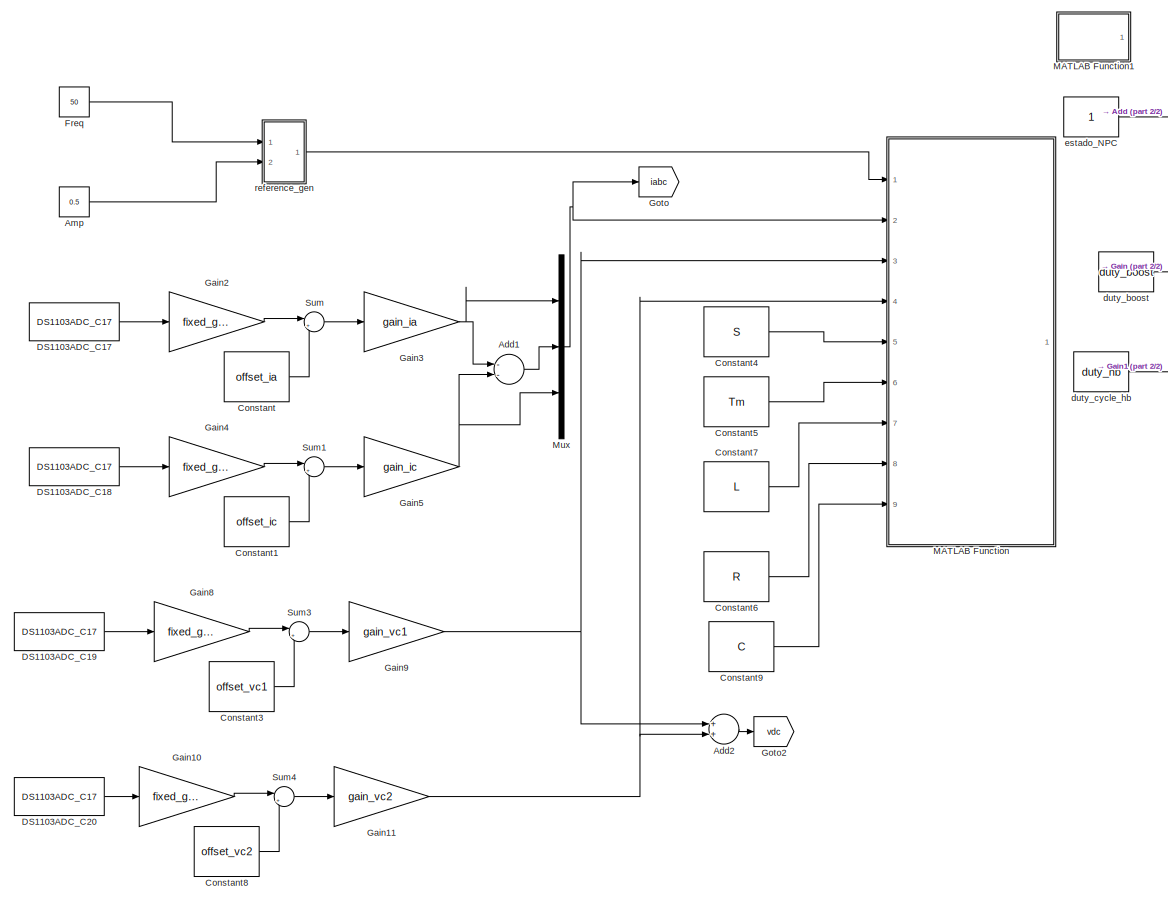
[diagram: root canvas - part 1/2, left side, full height]
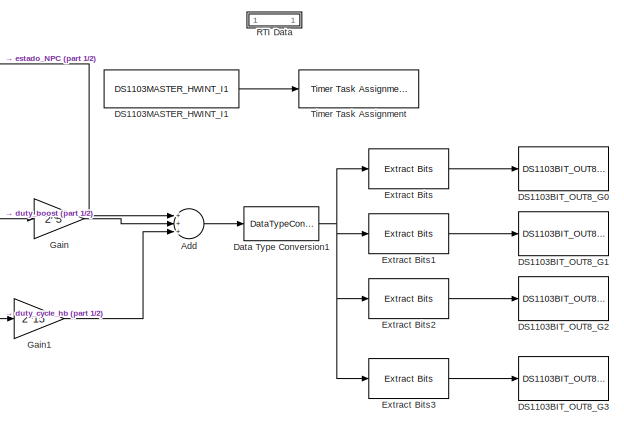
[diagram: root canvas - part 2/2, top right region]
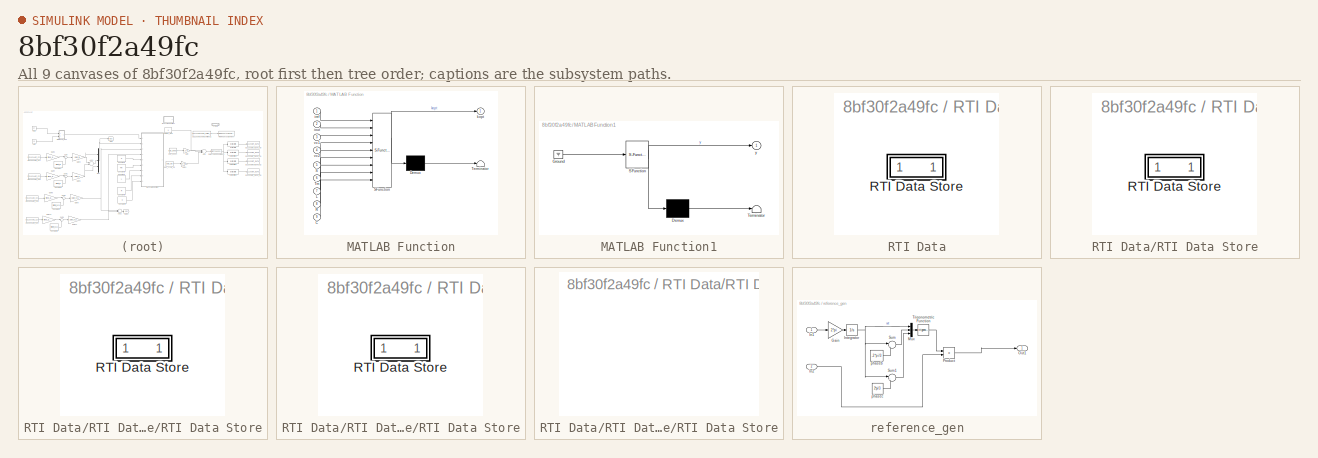
[diagram: thumbnail index - all 9 canvases of the model, root first then tree order]
MODEL slx_8bf30f2a49fc
KIND model
CONFIG PostLoadFcn = , if any(exist('dsrtsu_mdlpostloadfcn', 'file') == [2, 3, 6]), try dsrtsu_mdlpostloadfcn('Execute', bdroot); catch fprintf('Error in PostLoadFcn (dsrtsu_mdlpostloadfcn) for model "%s":\n %s\n', bdroot, lasterr); end, end, \n
BLOCK [Sum] Add
  InputSameDT = off
  Inputs = +++
  OutDataTypeStr = Inherit: Inherit via internal rule
  Ports = [3, 1]
  SaturateOnIntegerOverflow = off
BLOCK [Sum] Add1 
  InputSameDT = off
  Inputs = --
  OutDataTypeStr = Inherit: Inherit via internal rule
  Ports = [2, 1]
  SaturateOnIntegerOverflow = off
BLOCK [Sum] Add2
  InputSameDT = off
  OutDataTypeStr = Inherit: Inherit via internal rule
  Ports = [2, 1]
  SaturateOnIntegerOverflow = off
BLOCK [Constant] Amp
  Value = 0.5
BLOCK [Constant] Constant
  Value = offset_ia
BLOCK [Constant] Constant1
  Value = offset_ic
BLOCK [Constant] Constant3
  Value = offset_vc1
BLOCK [Constant] Constant4
  Value = S
BLOCK [Constant] Constant5
  Value = Tm
BLOCK [Constant] Constant6
  Value = R
BLOCK [Constant] Constant7
  Value = L
BLOCK [Constant] Constant8
  Value = offset_vc2
BLOCK [Constant] Constant9
  Value = C
BLOCK [Reference] DS1103ADC_C17  REF=rtilib1103/DS1103 MASTER PPC/DS1103ADC_C17
  ChannelNo = 17
  DSProperties = struct('RTI',struct('Version',uint32(1),'BlockType',struct('isSLSource',uint8(1),'isSLSink',uint8(0),'isHWSource',uint8(1),'isHWSink',uint8(0),'isSetup',uint8(0),'isInline',uint8(1),'isNonInline',uint8(0),'isInterrupt',uint8(0),'isChannelwise',uint8(1)),'IOBoardType','DS1103MASTER','UnitType','ADC','Identifier','ADC','DialogType','ML','BlockSet','NONE','SlaveProcessor','NONE'))  <repeated x4 — deduplicated; at blocks: DS1103ADC_C17, DS1103ADC_C18, DS1103ADC_C19, DS1103ADC_C20>
  DialogFcn = gui1103adc
  Ports = [0, 1]
  Reserved2 = []
  Reserved3 = []
  Reserved4 = []
  SourceBlock = rtilib1103/DS1103 MASTER PPC/DS1103ADC_C17
  SourceType = DS1103ADC_C
  TimerAPreTrigger = 0
  UnitName = { 'DS1103ADC_C' }
  UnitValues = { 17 }
BLOCK [Reference] DS1103ADC_C18  REF=rtilib1103/DS1103 MASTER PPC/DS1103ADC_C17
  ChannelNo = 18
  DialogFcn = gui1103adc
  Ports = [0, 1]
  Reserved2 = []
  Reserved3 = []
  Reserved4 = []
  SourceBlock = rtilib1103/DS1103 MASTER PPC/DS1103ADC_C17
  SourceType = DS1103ADC_C
  TimerAPreTrigger = 0
  UnitName = { 'DS1103ADC_C' }
  UnitValues = { 18 }
BLOCK [Reference] DS1103ADC_C19  REF=rtilib1103/DS1103 MASTER PPC/DS1103ADC_C17
  ChannelNo = 19
  DialogFcn = gui1103adc
  Ports = [0, 1]
  Reserved2 = []
  Reserved3 = []
  Reserved4 = []
  SourceBlock = rtilib1103/DS1103 MASTER PPC/DS1103ADC_C17
  SourceType = DS1103ADC_C
  TimerAPreTrigger = 0
  UnitName = { 'DS1103ADC_C' }
  UnitValues = { 19 }
BLOCK [Reference] DS1103ADC_C20  REF=rtilib1103/DS1103 MASTER PPC/DS1103ADC_C17
  ChannelNo = 20
  DialogFcn = gui1103adc
  Ports = [0, 1]
  Reserved2 = []
  Reserved3 = []
  Reserved4 = []
  SourceBlock = rtilib1103/DS1103 MASTER PPC/DS1103ADC_C17
  SourceType = DS1103ADC_C
  TimerAPreTrigger = 0
  UnitName = { 'DS1103ADC_C' }
  UnitValues = { 20 }
BLOCK [Reference] DS1103BIT_OUT8_G0  REF=rtilib1103/DS1103 MASTER PPC/DS1103BIT_OUT8_G0
  DSProperties = struct('RTI',struct('Version',uint32(1),'BlockType',struct('isSLSource',uint8(0),'isSLSink',uint8(1),'isHWSource',uint8(0),'isHWSink',uint8(1),'isSetup',uint8(0),'isInline',uint8(1),'isNonInline',uint8(0),'isInterrupt',uint8(0),'isChannelwise',uint8(0)),'IOBoardType','DS1103MASTER','UnitType','BIT','Identifier','BITOUT8','DialogType','ML','BlockSet','NONE','SlaveProcessor','NONE'))  <repeated x4 — deduplicated; at blocks: DS1103BIT_OUT8_G0, DS1103BIT_OUT8_G1, DS1103BIT_OUT8_G2, DS1103BIT_OUT8_G3>
  DialogFcn = gui1103bit_out8
  GroupNo = 0
  InitValue = 0
  Ports = [1]
  Reserved1 = []
  Reserved2 = []
  Reserved3 = []
  Reserved4 = []
  SourceBlock = rtilib1103/DS1103 MASTER PPC/DS1103BIT_OUT8_G0
  SourceType = DS1103_BIT_OUT8_G
  TermMode = 1
  TermValue = 0
  UnitName = { 'DS1103BIT_OUT8_G' }
  UnitValues = { 0 }
BLOCK [Reference] DS1103BIT_OUT8_G1  REF=rtilib1103/DS1103 MASTER PPC/DS1103BIT_OUT8_G0
  DialogFcn = gui1103bit_out8
  GroupNo = 1
  InitValue = 0
  Ports = [1]
  Reserved1 = []
  Reserved2 = []
  Reserved3 = []
  Reserved4 = []
  SourceBlock = rtilib1103/DS1103 MASTER PPC/DS1103BIT_OUT8_G0
  SourceType = DS1103_BIT_OUT8_G
  TermMode = 1
  TermValue = 0
  UnitName = { 'DS1103BIT_OUT8_G' }
  UnitValues = {1}
BLOCK [Reference] DS1103BIT_OUT8_G2  REF=rtilib1103/DS1103 MASTER PPC/DS1103BIT_OUT8_G0
  DialogFcn = gui1103bit_out8
  GroupNo = 2
  InitValue = 0
  Ports = [1]
  Reserved1 = []
  Reserved2 = []
  Reserved3 = []
  Reserved4 = []
  SourceBlock = rtilib1103/DS1103 MASTER PPC/DS1103BIT_OUT8_G0
  SourceType = DS1103_BIT_OUT8_G
  TermMode = 1
  TermValue = 0
  UnitName = { 'DS1103BIT_OUT8_G' }
  UnitValues = {2}
BLOCK [Reference] DS1103BIT_OUT8_G3  REF=rtilib1103/DS1103 MASTER PPC/DS1103BIT_OUT8_G0
  DialogFcn = gui1103bit_out8
  GroupNo = 3
  InitValue = 0
  Ports = [1]
  Reserved1 = []
  Reserved2 = []
  Reserved3 = []
  Reserved4 = []
  SourceBlock = rtilib1103/DS1103 MASTER PPC/DS1103BIT_OUT8_G0
  SourceType = DS1103_BIT_OUT8_G
  TermMode = 1
  TermValue = 0
  UnitName = { 'DS1103BIT_OUT8_G' }
  UnitValues = {3}
BLOCK [Reference] DS1103MASTER_HWINT_I1  REF=rtilib1103/DS1103 MASTER PPC/DS1103MASTER_HWINT_I1
  BoardIntNo = []
  BoardType = []
  DSProperties = struct('RTI',struct('IOBoardType',{{'DS1103MASTER'}},'SlaveProcessor','NONE','UnitType','HWINT','Identifier','HWINT','Version',uint32(2),'BlockType',struct('isSLSource',uint8(1),'isSLSink',uint8(0),'isHWSource',uint8(1),'isHWSink',uint8(0),'isSetup',uint8(0),'isInline',uint8(1),'isNonInline',uint8(0),'isInterrupt',uint8(1),'isChannelwise',uint8(0)),'DialogType','ML','BlockSet','NONE','RelationId',...<+40ch>
  DialogFcn = []
  DisplayIntNo = []
  InterruptName = []
  Parameters = []
  Ports = [0, 1]
  RTIBlockInterface = struct('BlockName',struct('Token',{{'DS1103MASTER_HWINT_I'}},'BlockParam',{{'ThIntNo'}}),'BlockDisplay',{{['DS1103MASTER Board \nUser-Interrupt 1'],'center'}},'DialogFcn','rti110xhwintgui','OutputPortsActive',1,'OutputPortsWidth',int32(1),'FunctionCall',uint32(0),'OutputPortsName',{{[' ']}},'IconTransparency','on','InitLevel',3,'Options',{{'SS_OPTION_FORCE_NONINLINED_FCNCALL','SS_OPTION_ASYNCHRONO...<+16ch>
  RTIBlockParaDefault = struct('BoardNo',0,'ThIntNo',1,'ThSrcSgnName',['User-Interrupt 1'],'ThBlk',['struct(''srcSgnId'', '''')'],'TLCFileName','rti_hwinterrupt','PHSBoardBaseId','DSXXXX')
  RTIBlockParameters = struct('BoardNo',{{0,'OFF',[]}},'ThIntNo',{{1,'ON',[1 13]}},'ThSrcSgnName',{{['User-Interrupt 1'],'OFF',[]}},'ThBlk',{{['struct(''blkh'',''DCMG2/DS1103MASTER_HWINT_I1'',''srcId'',''EXT0'',''srcSgnId'',''EXT0'',''intervalTmrBlockId'',[],''srcSgnName'',[''User-Interrupt 1''],''srcCpuId'','''',''isSrcCpu'',1,''isTargetCpu'',1,''srcOnMasterCpu'',1,''boardType'','''',''boardTypeNo'','''',''boardNo'',1,...<+707ch>
  RTISFcnParameters = struct('ThBlk','struct','ThIntNo','int32','TLCFileName','char','PHSBoardBaseId','char')
  Reserved1 = []
  Reserved2 = []
  Reserved3 = []
  Reserved4 = []
  Revision = []
  SourceBlock = rtilib1103/DS1103 MASTER PPC/DS1103MASTER_HWINT_I1
  SourceType = RTI
  TDef = []
  UnitName = []
  UnitValues = []
BLOCK [DataTypeConversion] Data Type Conversion1
  OutDataTypeStr = uint32
  RndMeth = Floor
  SaturateOnIntegerOverflow = off
BLOCK [Reference] Extract Bits  REF=simulink/Logic and Bit
Operations/Extract Bits
  Ports = [1, 1]
  SourceBlock = simulink/Logic and Bit\nOperations/Extract Bits
  SourceType = Extract Bits
  bitIdxRange = [0 7]
  bitsToExtract = Range of bits
  numBits = 8
  outScalingMode = Treat bit field as an integer
BLOCK [Reference] Extract Bits1  REF=simulink/Logic and Bit
Operations/Extract Bits
  Ports = [1, 1]
  SourceBlock = simulink/Logic and Bit\nOperations/Extract Bits
  SourceType = Extract Bits
  bitIdxRange = [8 15]
  bitsToExtract = Range of bits
  numBits = 8
  outScalingMode = Treat bit field as an integer
BLOCK [Reference] Extract Bits2  REF=simulink/Logic and Bit
Operations/Extract Bits
  Ports = [1, 1]
  SourceBlock = simulink/Logic and Bit\nOperations/Extract Bits
  SourceType = Extract Bits
  bitIdxRange = [16 23]
  bitsToExtract = Range of bits
  numBits = 8
  outScalingMode = Treat bit field as an integer
BLOCK [Reference] Extract Bits3  REF=simulink/Logic and Bit
Operations/Extract Bits
  Ports = [1, 1]
  SourceBlock = simulink/Logic and Bit\nOperations/Extract Bits
  SourceType = Extract Bits
  bitIdxRange = [24 31]
  bitsToExtract = Range of bits
  numBits = 8
  outScalingMode = Treat bit field as an integer
BLOCK [Constant] Freq
  Value = 50
BLOCK [Gain] Gain
  Gain = 2^5
  OutDataTypeStr = Inherit: Inherit via internal rule
  ParamDataTypeStr = Inherit: Inherit via internal rule
  SaturateOnIntegerOverflow = off
BLOCK [Gain] Gain1
  Gain = 2^15
  OutDataTypeStr = Inherit: Inherit via internal rule
  ParamDataTypeStr = Inherit: Inherit via internal rule
  SaturateOnIntegerOverflow = off
BLOCK [Gain] Gain10
  Gain = fixed_gain_vc2
  OutDataTypeStr = Inherit: Inherit via internal rule
  ParamDataTypeStr = Inherit: Inherit via internal rule
  SaturateOnIntegerOverflow = off
BLOCK [Gain] Gain11
  Gain = gain_vc2
  OutDataTypeStr = Inherit: Inherit via internal rule
  ParamDataTypeStr = Inherit: Inherit via internal rule
  SaturateOnIntegerOverflow = off
BLOCK [Gain] Gain2
  Gain = fixed_gain_ia
  OutDataTypeStr = Inherit: Inherit via internal rule
  ParamDataTypeStr = Inherit: Inherit via internal rule
  SaturateOnIntegerOverflow = off
BLOCK [Gain] Gain3
  Gain = gain_ia
  OutDataTypeStr = Inherit: Inherit via internal rule
  ParamDataTypeStr = Inherit: Inherit via internal rule
  SaturateOnIntegerOverflow = off
BLOCK [Gain] Gain4
  Gain = fixed_gain_ic
  OutDataTypeStr = Inherit: Inherit via internal rule
  ParamDataTypeStr = Inherit: Inherit via internal rule
  SaturateOnIntegerOverflow = off
BLOCK [Gain] Gain5
  Gain = gain_ic
  OutDataTypeStr = Inherit: Inherit via internal rule
  ParamDataTypeStr = Inherit: Inherit via internal rule
  SaturateOnIntegerOverflow = off
BLOCK [Gain] Gain8
  Gain = fixed_gain_vc1
  OutDataTypeStr = Inherit: Inherit via internal rule
  ParamDataTypeStr = Inherit: Inherit via internal rule
  SaturateOnIntegerOverflow = off
BLOCK [Gain] Gain9
  Gain = gain_vc1
  OutDataTypeStr = Inherit: Inherit via internal rule
  ParamDataTypeStr = Inherit: Inherit via internal rule
  SaturateOnIntegerOverflow = off
BLOCK [Goto] Goto
  GotoTag = iabc
BLOCK [Goto] Goto2
  GotoTag = vdc
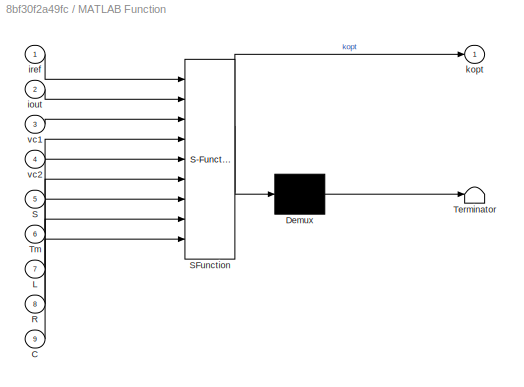
BLOCK [SubSystem] MATLAB Function
  ErrorFcn = Stateflow.Translate.translate
  PermitHierarchicalResolution = ExplicitOnly
  Ports = [9, 1]
  RequestExecContextInheritance = off
  SFBlockType = MATLAB Function
  TreatAsAtomicUnit = on
BLOCK [Demux] MATLAB Function/ Demux 
  Outputs = 1
  Ports = [1, 1]
BLOCK [S-Function] MATLAB Function/ SFunction 
  EnableBusSupport = on
  FunctionName = sf_sfun
  PortCounts = [9 2]
  Ports = [9, 2]
  Tag = Stateflow S-Function DCMG2 2
BLOCK [Terminator] MATLAB Function/ Terminator 
BLOCK [Inport] MATLAB Function/C
  IconDisplay = Port number
  Port = 9
BLOCK [Inport] MATLAB Function/L
  IconDisplay = Port number
  Port = 7
BLOCK [Inport] MATLAB Function/R
  IconDisplay = Port number
  Port = 8
BLOCK [Inport] MATLAB Function/S
  IconDisplay = Port number
  Port = 5
BLOCK [Inport] MATLAB Function/Tm
  IconDisplay = Port number
  Port = 6
BLOCK [Inport] MATLAB Function/iout
  IconDisplay = Port number
  Port = 2
BLOCK [Inport] MATLAB Function/iref
  IconDisplay = Port number
BLOCK [Outport] MATLAB Function/kopt
  IconDisplay = Port number
BLOCK [Inport] MATLAB Function/vc1
  IconDisplay = Port number
  Port = 3
BLOCK [Inport] MATLAB Function/vc2
  IconDisplay = Port number
  Port = 4
BLOCK [SubSystem] MATLAB Function1
  ErrorFcn = Stateflow.Translate.translate
  PermitHierarchicalResolution = ExplicitOnly
  Ports = [0, 1]
  RequestExecContextInheritance = off
  SFBlockType = MATLAB Function
  TreatAsAtomicUnit = on
BLOCK [Demux] MATLAB Function1/ Demux 
  Outputs = 1
  Ports = [1, 1]
BLOCK [Ground] MATLAB Function1/ Ground 
BLOCK [S-Function] MATLAB Function1/ SFunction 
  EnableBusSupport = on
  FunctionName = sf_sfun
  PortCounts = [1 2]
  Ports = [1, 2]
  Tag = Stateflow S-Function DCMG2 1
BLOCK [Terminator] MATLAB Function1/ Terminator 
BLOCK [Outport] MATLAB Function1/y
  IconDisplay = Port number
BLOCK [Mux] Mux
  DisplayOption = bar
  Inputs = 3
  Ports = [3, 1]
BLOCK [SubSystem] RTI Data
  CopyFcn = if exist('rtidc'), try,  rtidc('DataHostBlockClbCopy', gcbh); catch, disp(['Warning: ''CopyFcn'' for RTI Data block failed: ' lasterr]); end, end,
  DeleteFcn = if exist('rtidc'), try,  rtidc('DataHostBlockClbDelete', gcbh); catch, disp(['Warning: ''DeleteFcn'' for RTI Data block failed: ' lasterr]); end, end,
  LoadFcn = if exist('rtidc'), try,  rtidc('DataHostBlockClbLoad', gcbh); catch, disp(['Warning: ''LoadFcn'' for RTI Data block failed: ' lasterr]); end, end,
  ModelCloseFcn = if exist('rtidc'), try,  rtidc('DataHostBlockClbModelClose', gcbh); catch, disp(['Warning: ''ModelCloseFcn'' for RTI Data block failed: ' lasterr]); end, end,
  NameChangeFcn = if exist('rtidc'), try,  rtidc('DataHostBlockClbNameChange', gcbh); catch, disp(['Warning: ''NameChangeFcn'' for RTI Data block failed: ' lasterr]); end, end,
  Ports = []
  PostSaveFcn = if exist('rtidc'), try,  rtidc('DataHostBlockClbPostSave', gcbh); catch, disp(['Warning: ''PostSaveFcn'' for RTI Data block failed: ' lasterr]); end, end,
  PreSaveFcn = if exist('rtidc'), try,  rtidc('DataHostBlockClbPreSave', gcbh); catch, disp(['Warning: ''PreSaveFcn'' for RTI Data block failed: ' lasterr]); end, end,
  RequestExecContextInheritance = off
  Tag = struct('RTIDataServer',struct('RTIDataServerVs','2','RTIModelDescription','struct(''main'',''DCMG2'',''sub'','''',''isMp'',0)'))
BLOCK [SubSystem] RTI Data/RTI Data Store
  Ports = []
  RequestExecContextInheritance = off
  Tag = struct('public',struct('sub',struct('name',{{'DCMG2'}},'data',{{struct('TH',struct('thTaskInfo',struct('taskType',{'TIMER','HWINT','TMRINT','SWINT','GLINT'},'tasksNumOf',{1,0,0,0,0},'srcIds',{{'EXT0'},{},{},{},{}},'taskNames',{{['Timer Task 1']},{},{},{},{}})),'th_tc',struct('dataType','TASK','taskGroupId','','taskGroupList',{{}},'taskSchedulingPolicy','FCFS','taskType','TIMER','blkh','DCMG2/DS110...<+785ch>
BLOCK [SubSystem] RTI Data/RTI Data Store/RTI Data Store
  Ports = []
  RequestExecContextInheritance = off
BLOCK [SubSystem] RTI Data/RTI Data Store/RTI Data Store/RTI Data Store
  Ports = []
  RequestExecContextInheritance = off
BLOCK [SubSystem] RTI Data/RTI Data Store/RTI Data Store/RTI Data Store/RTI Data Store
  Ports = []
  RequestExecContextInheritance = off
BLOCK [Sum] Sum
  IconShape = round
  InputSameDT = off
  Inputs = |++
  OutDataTypeStr = Inherit: Inherit via internal rule
  Ports = [2, 1]
  SaturateOnIntegerOverflow = off
BLOCK [Sum] Sum1
  IconShape = round
  InputSameDT = off
  Inputs = |++
  OutDataTypeStr = Inherit: Inherit via internal rule
  Ports = [2, 1]
  SaturateOnIntegerOverflow = off
BLOCK [Sum] Sum3
  IconShape = round
  InputSameDT = off
  Inputs = |++
  OutDataTypeStr = Inherit: Inherit via internal rule
  Ports = [2, 1]
  SaturateOnIntegerOverflow = off
BLOCK [Sum] Sum4
  IconShape = round
  InputSameDT = off
  Inputs = |++
  OutDataTypeStr = Inherit: Inherit via internal rule
  Ports = [2, 1]
  SaturateOnIntegerOverflow = off
BLOCK [Reference] Timer Task Assignment  REF=rtitasklib/Timer Task Assignment
  DSProperties = struct('RTI',struct('Version',uint32(2),'BlockType',struct('isSLSource',uint8(0),'isSLSink',uint8(1),'isHWSource',uint8(0),'isHWSink',uint8(0),'isSetup',uint8(0),'isInline',uint8(1),'isNonInline',uint8(0),'isInterrupt',uint8(0),'isChannelwise',uint8(0)),'IOBoardType','INTLIB','UnitType','TTASSIGN','Identifier','TTASSIGN','DialogType','SL','BlockSet','NONE','SlaveProcessor','NONE','RelationId',stru...<+39ch>
  Ports = [1]
  Reserved2 = []
  Reserved3 = []
  Reserved4 = []
  SourceBlock = rtitasklib/Timer Task Assignment
  SourceType = RTI
BLOCK [Constant] duty_boost
  Value = duty_boost
BLOCK [Constant] duty_cycle_hb
  Value = duty_hb
BLOCK [Constant] estado_NPC 
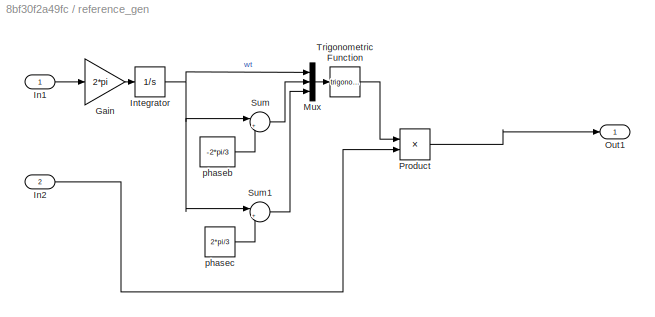
BLOCK [SubSystem] reference_gen
  Ports = [2, 1]
  RequestExecContextInheritance = off
BLOCK [Gain] reference_gen/Gain
  Gain = 2*pi
  OutDataTypeStr = Inherit: Inherit via internal rule
  ParamDataTypeStr = Inherit: Inherit via internal rule
  SaturateOnIntegerOverflow = off
BLOCK [Inport] reference_gen/In1
  IconDisplay = Port number
BLOCK [Inport] reference_gen/In2
  IconDisplay = Port number
  Port = 2
BLOCK [Integrator] reference_gen/Integrator
  Ports = [1, 1]
BLOCK [Mux] reference_gen/Mux
  DisplayOption = bar
  Inputs = 3
  Ports = [3, 1]
BLOCK [Outport] reference_gen/Out1
  IconDisplay = Port number
BLOCK [Product] reference_gen/Product
  InputSameDT = off
  OutDataTypeStr = Inherit: Inherit via internal rule
  Ports = [2, 1]
  RndMeth = Floor
  SaturateOnIntegerOverflow = off
BLOCK [Sum] reference_gen/Sum
  IconShape = round
  InputSameDT = off
  Inputs = |++
  OutDataTypeStr = Inherit: Inherit via internal rule
  Ports = [2, 1]
  SaturateOnIntegerOverflow = off
BLOCK [Sum] reference_gen/Sum1
  IconShape = round
  InputSameDT = off
  Inputs = |++
  OutDataTypeStr = Inherit: Inherit via internal rule
  Ports = [2, 1]
  SaturateOnIntegerOverflow = off
BLOCK [Trigonometry] reference_gen/Trigonometric Function
  Ports = [1, 1]
BLOCK [Constant] reference_gen/phaseb
  Value = -2*pi/3
BLOCK [Constant] reference_gen/phasec
  Value = 2*pi/3
LINE Add1 :1 -> Mux:2
LINE Add2:1 -> Goto2:1
LINE Add:1 -> Data Type Conversion1:1
LINE Amp:1 -> reference_gen:2
LINE Constant1:1 -> Sum1:2
LINE Constant3:1 -> Sum3:2
LINE Constant4:1 -> MATLAB Function:5
LINE Constant5:1 -> MATLAB Function:6
LINE Constant6:1 -> MATLAB Function:8
LINE Constant7:1 -> MATLAB Function:7
LINE Constant8:1 -> Sum4:2
LINE Constant9:1 -> MATLAB Function:9
LINE Constant:1 -> Sum:2
LINE DS1103ADC_C17:1 -> Gain2:1
LINE DS1103ADC_C18:1 -> Gain4:1
LINE DS1103ADC_C19:1 -> Gain8:1
LINE DS1103ADC_C20:1 -> Gain10:1
LINE DS1103MASTER_HWINT_I1:1 -> Timer Task Assignment:1
NET Data Type Conversion1:1 -> Extract Bits1:1, Extract Bits2:1, Extract Bits3:1, Extract Bits:1
LINE Extract Bits1:1 -> DS1103BIT_OUT8_G1:1
LINE Extract Bits2:1 -> DS1103BIT_OUT8_G2:1
LINE Extract Bits3:1 -> DS1103BIT_OUT8_G3:1
LINE Extract Bits:1 -> DS1103BIT_OUT8_G0:1
LINE Freq:1 -> reference_gen:1
LINE Gain10:1 -> Sum4:1
NET Gain11:1 -> Add2:2, MATLAB Function:4
LINE Gain1:1 -> Add:3
LINE Gain2:1 -> Sum:1
NET Gain3:1 -> Add1 :1, Mux:1
LINE Gain4:1 -> Sum1:1
NET Gain5:1 -> Add1 :2, Mux:3
LINE Gain8:1 -> Sum3:1
NET Gain9:1 -> Add2:1, MATLAB Function:3
LINE Gain:1 -> Add:2
NET Mux:1 -> Goto:1, MATLAB Function:2
LINE Sum1:1 -> Gain5:1
LINE Sum3:1 -> Gain9:1
LINE Sum4:1 -> Gain11:1
LINE Sum:1 -> Gain3:1
LINE duty_boost:1 -> Gain:1
LINE duty_cycle_hb:1 -> Gain1:1
LINE estado_NPC :1 -> Add:1
LINE reference_gen/Gain:1 -> reference_gen/Integrator:1
LINE reference_gen/In1:1 -> reference_gen/Gain:1
LINE reference_gen/In2:1 -> reference_gen/Product:2
NET reference_gen/Integrator:1 -> reference_gen/Mux:1, reference_gen/Sum1:1, reference_gen/Sum:1
LINE reference_gen/Mux:1 -> reference_gen/Trigonometric Function:1
LINE reference_gen/Product:1 -> reference_gen/Out1:1
LINE reference_gen/Sum1:1 -> reference_gen/Mux:3
LINE reference_gen/Sum:1 -> reference_gen/Mux:2
LINE reference_gen/Trigonometric Function:1 -> reference_gen/Product:1
LINE reference_gen/phaseb:1 -> reference_gen/Sum:2
LINE reference_gen/phasec:1 -> reference_gen/Sum1:2
LINE reference_gen:1 -> MATLAB Function:1
note: NET lines group one-source signal fan-out (src -> all destinations, sorted); 1:1 wires keep LINE
CHART MATLAB Function1 states=1 transitions=1
  STATE_LABEL 'eML_blk_kernel()'
  STATE_LABEL 'SCRIPT:\nfunction y = fcn()\npersistent counter\nif isempty(counter)\n    counter = 1;\nend\n\ncounter = counter + 1;\nif(counter == 28)\n    counter = 1;\nend\n\ny = counter;'
CHART MATLAB Function states=1 transitions=1
  STATE_LABEL 'eML_blk_kernel()'
  STATE_LABEL "SCRIPT:\nfunction kopt  = fcn(iref, iout, vc1, vc2, S, Tm, L, R, C)\ngmin = 100000000000;\nkopt = 1;\nfor k = 1:27\n    v = S(k,:)'*(vc1+vc2)/2;\n    v = flip(v);\n    vp = sum(v)/3;\n    ikk = iout + (Tm/L)*(v-vp-R*iout);\n    e = iref - ikk;\n\n    if k<14\n        if(all(S(k,:)<1))\n            vkk2 = vc2*(1-Tm/(R*C));\n            vkk1 = vc1 + vc2 - vkk2;\n            ev = (vkk1-vkk2);\n        else\n         ...<+318ch>"
